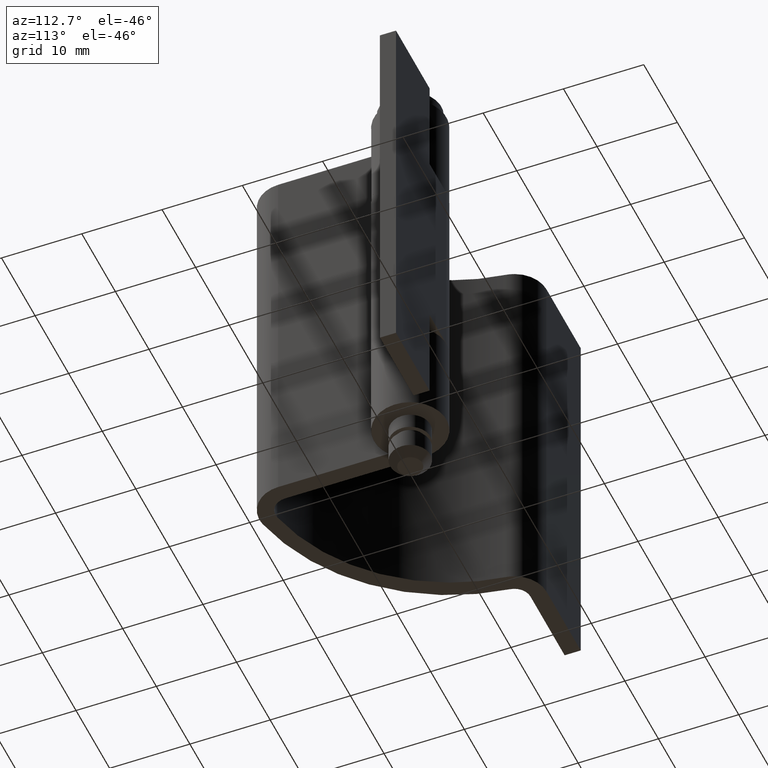
[diagram: clean part render]
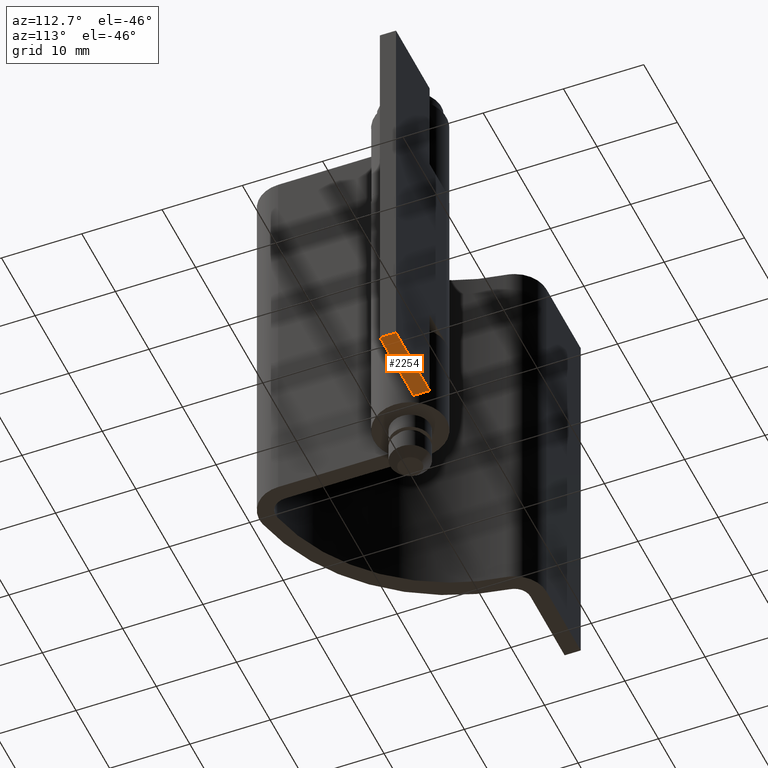
[diagram: same view with one face highlighted and labeled with its STEP entity id]
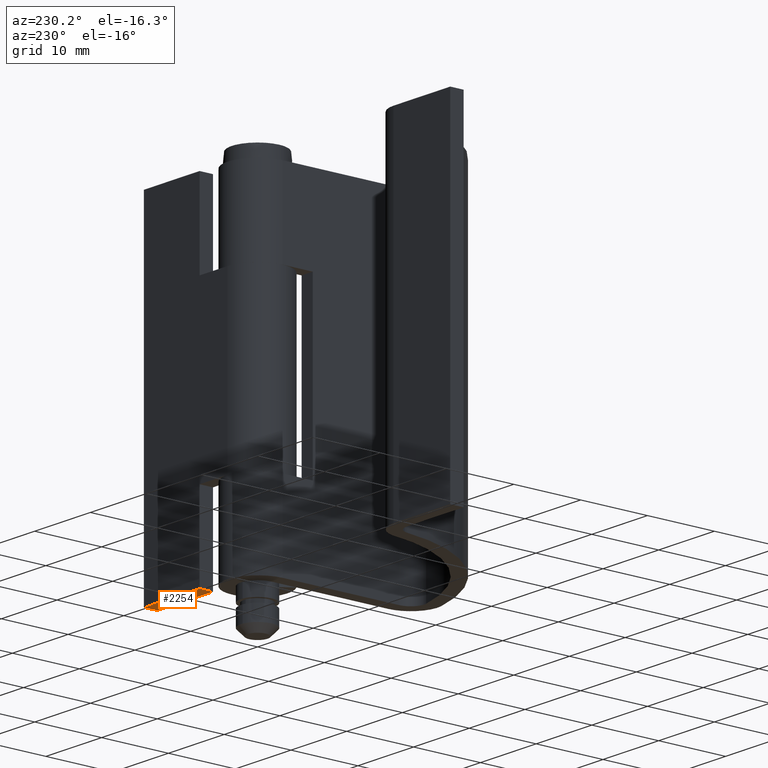
[diagram: same view with one face highlighted and labeled with its STEP entity id]
A machine part, auxiliary view. The second image highlights one B-rep face of the part: STEP entity #2254.
A second angle (auxiliary view) of the same face is appended — the face is thin or edge-on in the first view.
In plain terms, the highlighted face is a freeform B-spline surface patch.
Its self-contained STEP definition (entity closure, byte-faithful):
#2176=CARTESIAN_POINT('',(4.999999999999800,2.500000000000000,6.0));
#2177=VERTEX_POINT('',#2176);
#2178=CARTESIAN_POINT('',(4.999999999999800,4.500000000000000,6.0));
#2179=VERTEX_POINT('',#2178);
#2180=CARTESIAN_POINT('',(4.999999999999800,2.500000000000000,6.0));
#2181=CARTESIAN_POINT('',(4.999999999999800,4.500000000000000,6.0));
#2182=QUASI_UNIFORM_CURVE('',1,(#2180,#2181),.UNSPECIFIED.,.F.,.U.);
#2183=EDGE_CURVE('',#2177,#2179,#2182,.T.);
#2204=CARTESIAN_POINT('',(15.0,4.500000000000000,6.0));
#2205=VERTEX_POINT('',#2204);
#2206=CARTESIAN_POINT('',(15.0,2.500000000000000,6.0));
#2207=VERTEX_POINT('',#2206);
#2208=CARTESIAN_POINT('',(15.0,4.500000000000000,6.0));
#2209=CARTESIAN_POINT('',(15.0,2.500000000000000,6.0));
#2210=QUASI_UNIFORM_CURVE('',1,(#2208,#2209),.UNSPECIFIED.,.F.,.U.);
#2211=EDGE_CURVE('',#2205,#2207,#2210,.T.);
#2235=CARTESIAN_POINT('',(4.500500019381731,2.400100003876388,6.0));
#2236=CARTESIAN_POINT('',(15.499500248838970,2.400100003876388,6.0));
#2237=CARTESIAN_POINT('',(4.500500019381731,4.599900049767792,6.0));
#2238=CARTESIAN_POINT('',(15.499500248838970,4.599900049767792,6.0));
#2239=B_SPLINE_SURFACE_WITH_KNOTS('',1,1,((#2235,#2237),(#2236,#2238)),.UNSPECIFIED.,.F.,.F.,.U.,(2,2),(2,2),(0.0,10.999000229457240),(0.0,2.199800045891404),.UNSPECIFIED.);
#2240=CARTESIAN_POINT('',(15.0,2.500000000000000,6.0));
#2241=CARTESIAN_POINT('',(4.999999999999800,2.500000000000000,6.0));
#2242=QUASI_UNIFORM_CURVE('',1,(#2240,#2241),.UNSPECIFIED.,.F.,.U.);
#2243=EDGE_CURVE('',#2207,#2177,#2242,.T.);
#2244=ORIENTED_EDGE('',*,*,#2243,.T.);
#2245=ORIENTED_EDGE('',*,*,#2183,.T.);
#2246=CARTESIAN_POINT('',(4.999999999999800,4.500000000000000,6.0));
#2247=CARTESIAN_POINT('',(15.0,4.500000000000000,6.0));
#2248=QUASI_UNIFORM_CURVE('',1,(#2246,#2247),.UNSPECIFIED.,.F.,.U.);
#2249=EDGE_CURVE('',#2179,#2205,#2248,.T.);
#2250=ORIENTED_EDGE('',*,*,#2249,.T.);
#2251=ORIENTED_EDGE('',*,*,#2211,.T.);
#2252=EDGE_LOOP('',(#2244,#2245,#2250,#2251));
#2253=FACE_OUTER_BOUND('',#2252,.T.);
#2254=ADVANCED_FACE('',(#2253),#2239,.F.);